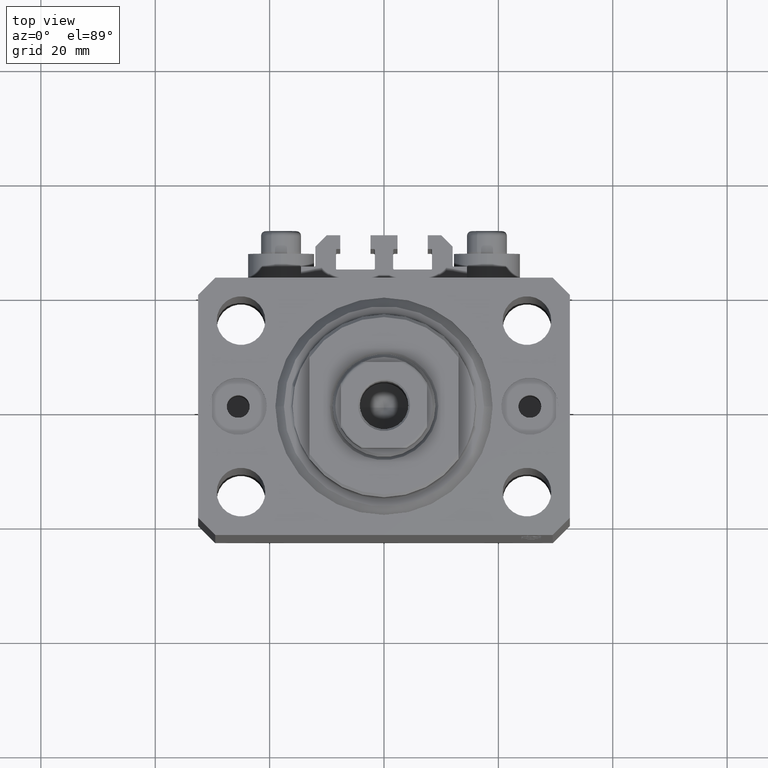
[diagram: clean part render]
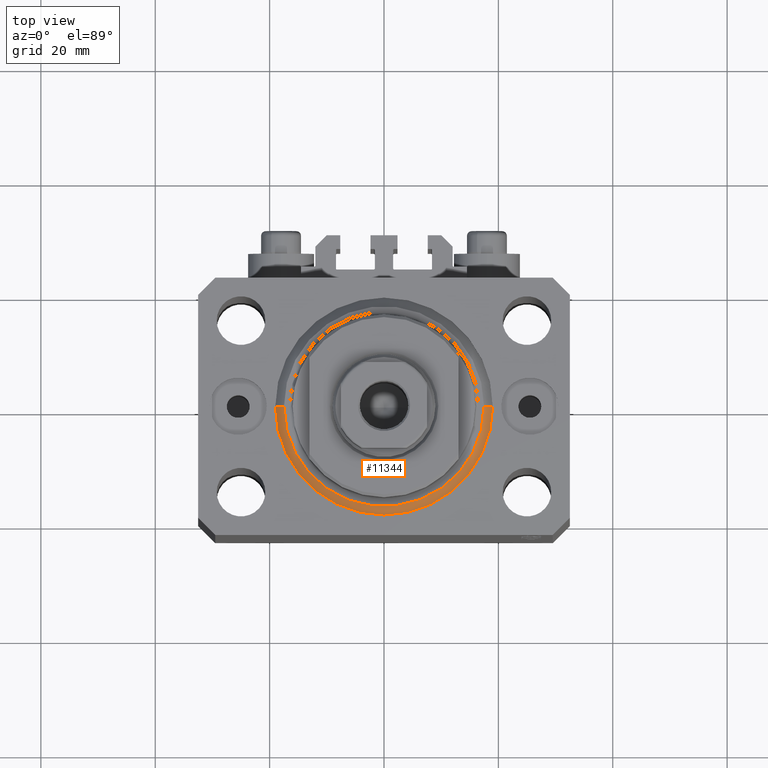
[diagram: same view with one face highlighted and labeled with its STEP entity id]
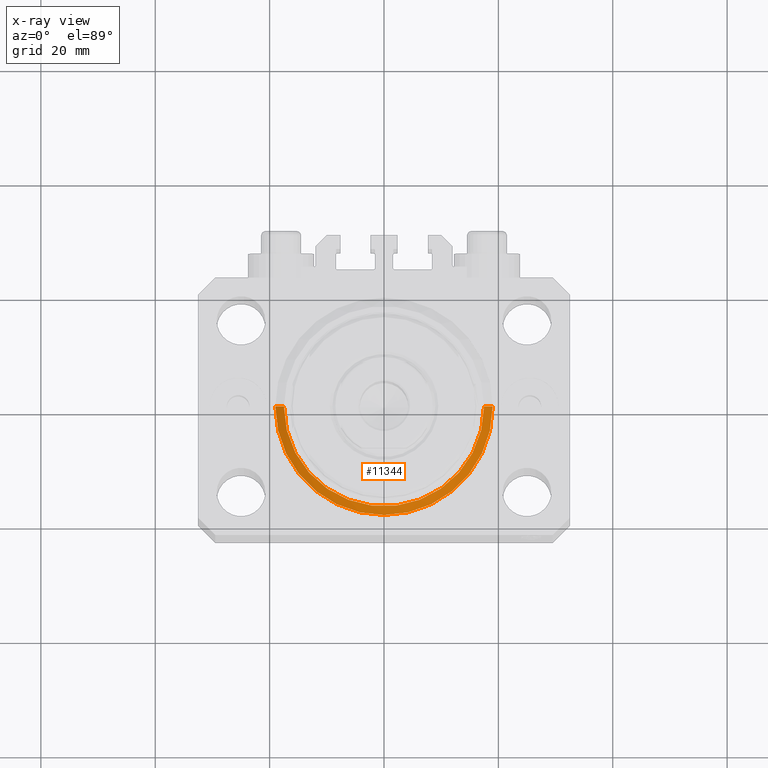
[diagram: x-ray of the same camera — body ghosted, the highlighted face saturated]
A machine part, top view. The second image highlights one B-rep face of the part: STEP entity #11344.
The next image is the same camera in x-ray: the body ghosted, the highlighted face saturated — about 0% of this face is hidden behind the body in this view.
In plain terms, the highlighted conical surface has half-angle 45 deg.
Its self-contained STEP definition (entity closure, byte-faithful):
#500 = EDGE_CURVE ( 'NONE', #15280, #983, #3324, .T. ) ;
#983 = VERTEX_POINT ( 'NONE', #23978 ) ;
#3324 = LINE ( 'NONE', #17651, #16827 ) ;
#4481 = VERTEX_POINT ( 'NONE', #46004 ) ;
#5016 = ORIENTED_EDGE ( 'NONE', *, *, #6831, .F. ) ;
#5163 = DIRECTION ( 'NONE',  ( 1.000000000000000000, 0.000000000000000000, 0.000000000000000000 ) ) ;
#6831 = EDGE_CURVE ( 'NONE', #14814, #15280, #7898, .T. ) ;
#7445 = CARTESIAN_POINT ( 'NONE',  ( 17.49999999999999289, 0.000000000000000000, 0.000000000000000000 ) ) ;
#7656 = DIRECTION ( 'NONE',  ( -0.000000000000000000, -0.000000000000000000, 1.000000000000000000 ) ) ;
#7898 = CIRCLE ( 'NONE', #26925, 17.49999999999999289 ) ;
#9432 = DIRECTION ( 'NONE',  ( 1.000000000000000000, 0.000000000000000000, 0.000000000000000000 ) ) ;
#9774 = LINE ( 'NONE', #34585, #24497 ) ;
#11316 = ORIENTED_EDGE ( 'NONE', *, *, #41614, .F. ) ;
#11344 = ADVANCED_FACE ( 'NONE', ( #35822 ), #19364, .T. ) ;
#14814 = VERTEX_POINT ( 'NONE', #7445 ) ;
#14906 = CIRCLE ( 'NONE', #19486, 19.00000000000000000 ) ;
#15280 = VERTEX_POINT ( 'NONE', #21187 ) ;
#16129 = CARTESIAN_POINT ( 'NONE',  ( 0.000000000000000000, 0.000000000000000000, 1.500000000000004885 ) ) ;
#16827 = VECTOR ( 'NONE', #28373, 1000.000000000000000 ) ;
#17651 = CARTESIAN_POINT ( 'NONE',  ( -19.00000000000000000, 2.326828918379970970E-15, 1.500000000000004885 ) ) ;
#19230 = DIRECTION ( 'NONE',  ( -0.000000000000000000, -0.000000000000000000, 1.000000000000000000 ) ) ;
#19364 = CONICAL_SURFACE ( 'NONE', #46797, 19.00000000000000000, 0.7853981633974492782 ) ;
#19486 = AXIS2_PLACEMENT_3D ( 'NONE', #16129, #19230, #5163 ) ;
#21187 = CARTESIAN_POINT ( 'NONE',  ( -17.49999999999999289, 2.234980408443919215E-15, 0.000000000000000000 ) ) ;
#23978 = CARTESIAN_POINT ( 'NONE',  ( -19.00000000000000000, 0.000000000000000000, 1.500000000000004885 ) ) ;
#23997 = DIRECTION ( 'NONE',  ( -0.000000000000000000, -0.000000000000000000, -1.000000000000000000 ) ) ;
#24497 = VECTOR ( 'NONE', #38871, 1000.000000000000000 ) ;
#24867 = DIRECTION ( 'NONE',  ( 1.000000000000000000, 0.000000000000000000, 0.000000000000000000 ) ) ;
#25543 = EDGE_LOOP ( 'NONE', ( #36199, #5016, #46975, #11316 ) ) ;
#26925 = AXIS2_PLACEMENT_3D ( 'NONE', #39011, #23997, #9432 ) ;
#28373 = DIRECTION ( 'NONE',  ( -0.7071067811865483499, 8.659560562354943952E-17, 0.7071067811865467956 ) ) ;
#30559 = EDGE_CURVE ( 'NONE', #14814, #4481, #9774, .T. ) ;
#34585 = CARTESIAN_POINT ( 'NONE',  ( 19.00000000000000000, 0.000000000000000000, 1.500000000000004885 ) ) ;
#35822 = FACE_OUTER_BOUND ( 'NONE', #25543, .T. ) ;
#36199 = ORIENTED_EDGE ( 'NONE', *, *, #500, .F. ) ;
#38871 = DIRECTION ( 'NONE',  ( 0.7071067811865483499, 0.000000000000000000, 0.7071067811865467956 ) ) ;
#39011 = CARTESIAN_POINT ( 'NONE',  ( 0.000000000000000000, 0.000000000000000000, 0.000000000000000000 ) ) ;
#40339 = CARTESIAN_POINT ( 'NONE',  ( 0.000000000000000000, 0.000000000000000000, 1.500000000000004885 ) ) ;
#41614 = EDGE_CURVE ( 'NONE', #983, #4481, #14906, .T. ) ;
#46004 = CARTESIAN_POINT ( 'NONE',  ( 19.00000000000000000, 2.326828918379970970E-15, 1.500000000000004885 ) ) ;
#46797 = AXIS2_PLACEMENT_3D ( 'NONE', #40339, #7656, #24867 ) ;
#46975 = ORIENTED_EDGE ( 'NONE', *, *, #30559, .T. ) ;